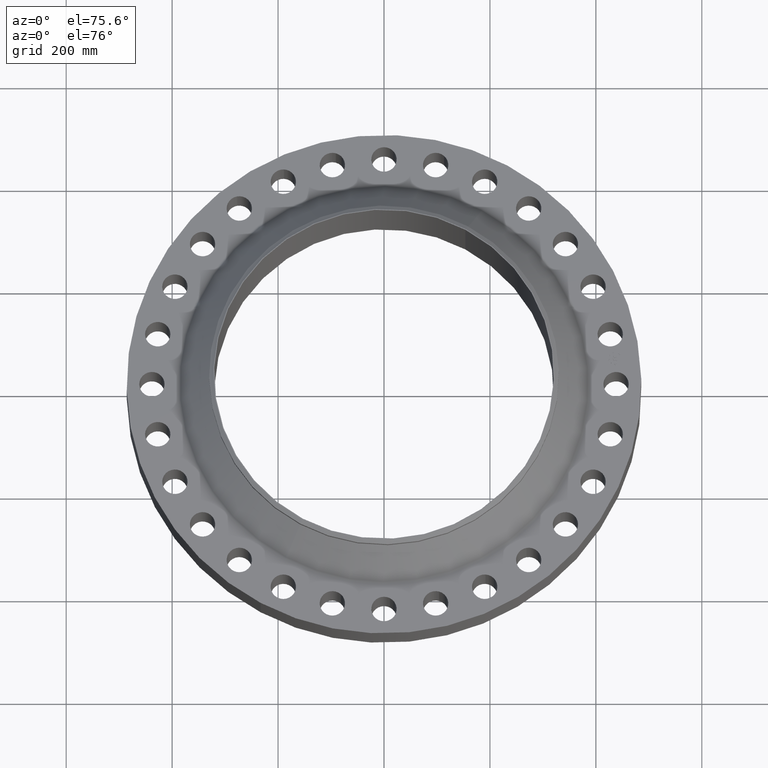
[diagram: clean part render]
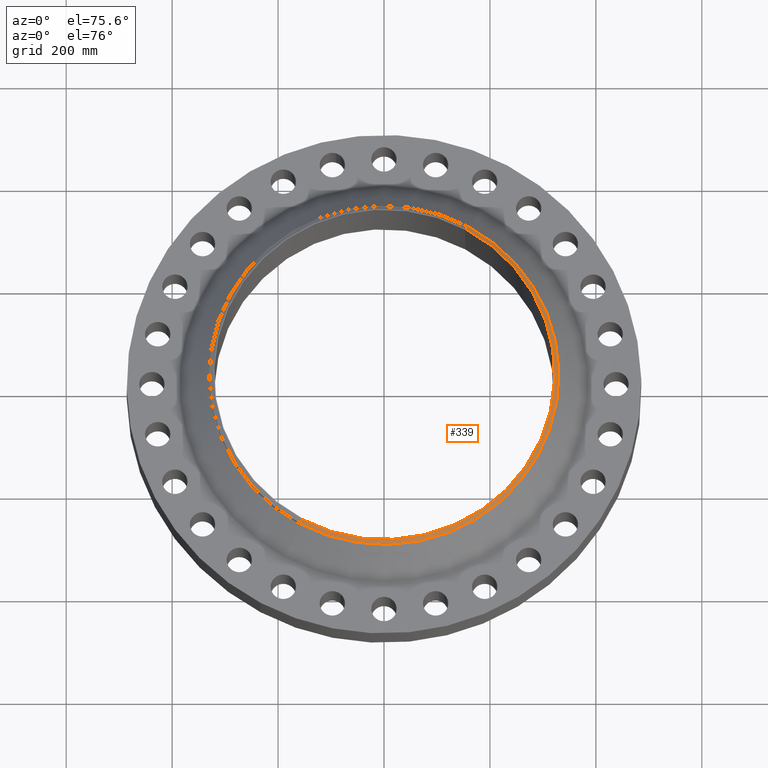
[diagram: same view with one face highlighted and labeled with its STEP entity id]
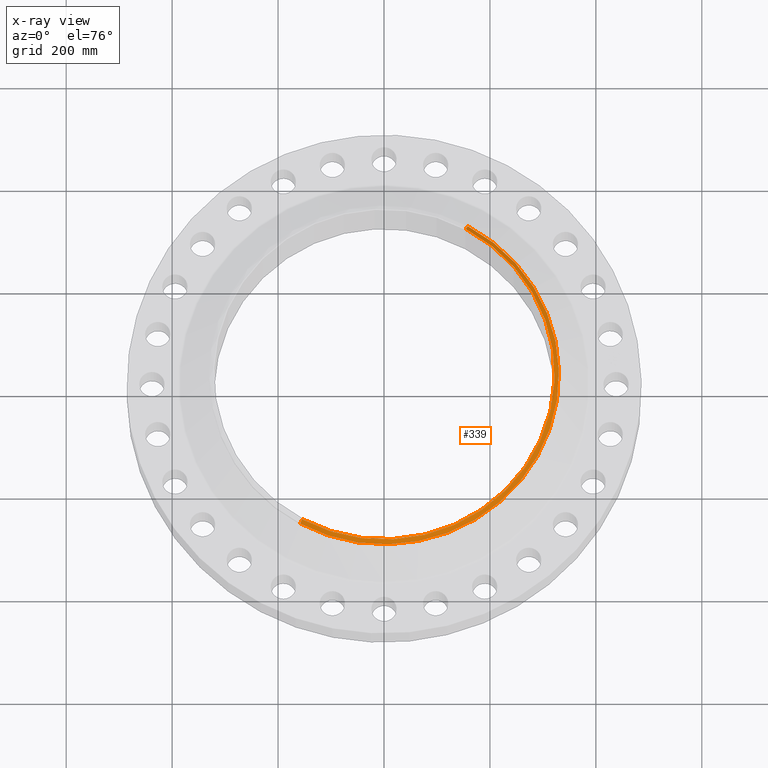
[diagram: x-ray of the same camera — body ghosted, the highlighted face saturated]
A machine part, auxiliary view. The second image highlights one B-rep face of the part: STEP entity #339.
The next image is the same camera in x-ray: the body ghosted, the highlighted face saturated — about 0% of this face is hidden behind the body in this view.
In plain terms, the highlighted conical surface has half-angle 52.5 deg.
Its self-contained STEP definition (entity closure, byte-faithful):
#275=CARTESIAN_POINT('Vertex',(-158.306312848,-289.777761937,141.483342033)) ;
#282=CARTESIAN_POINT('Vertex',(158.306312848,289.777761937,141.483342033)) ;
#285=CARTESIAN_POINT('Axis2P3D Location',(0.,0.,141.483342033)) ;
#309=CARTESIAN_POINT('Axis2P3D Location',(0.,0.,147.574000001)) ;
#314=CARTESIAN_POINT('Line Origine',(158.539105076,290.203885253,141.110754958)) ;
#318=CARTESIAN_POINT('Vertex',(154.500872635,282.811950352,147.574000001)) ;
#321=CARTESIAN_POINT('Axis2P3D Location',(0.,0.,147.574000001)) ;
#325=CARTESIAN_POINT('Vertex',(-154.500872635,-282.811950352,147.574000001)) ;
#328=CARTESIAN_POINT('Line Origine',(-158.539105076,-290.203885253,141.110754958)) ;
#286=DIRECTION('Axis2P3D Direction',(0.,0.,-1.)) ;
#310=DIRECTION('Axis2P3D Direction',(-0.,-0.,-1.)) ;
#311=DIRECTION('Axis2P3D XDirection',(0.479425538604,0.87758256189,0.)) ;
#315=DIRECTION('Vector Direction',(0.380353852473,0.696233056857,-0.608761429009)) ;
#322=DIRECTION('Axis2P3D Direction',(0.,-0.,-1.)) ;
#329=DIRECTION('Vector Direction',(-0.380353852473,-0.696233056857,-0.608761429009)) ;
#287=AXIS2_PLACEMENT_3D('Circle Axis2P3D',#285,#286,$) ;
#312=AXIS2_PLACEMENT_3D('Cone Axis2P3D',#309,#310,#311) ;
#323=AXIS2_PLACEMENT_3D('Circle Axis2P3D',#321,#322,$) ;
#334=ORIENTED_EDGE('',*,*,#320,.F.) ;
#335=ORIENTED_EDGE('',*,*,#327,.T.) ;
#336=ORIENTED_EDGE('',*,*,#332,.T.) ;
#337=ORIENTED_EDGE('',*,*,#289,.F.) ;
#316=VECTOR('Line Direction',#315,1.) ;
#330=VECTOR('Line Direction',#329,1.) ;
#339=ADVANCED_FACE('PartBody',(#338),#313,.T.) ;
#288=CIRCLE('generated circle',#287,330.200000001) ;
#324=CIRCLE('generated circle',#323,322.262500001) ;
#313=CONICAL_SURFACE('Cone',#312,322.262500001,0.916297857297) ;
#289=EDGE_CURVE('',#283,#276,#288,.T.) ;
#320=EDGE_CURVE('',#319,#283,#317,.T.) ;
#327=EDGE_CURVE('',#319,#326,#324,.T.) ;
#332=EDGE_CURVE('',#326,#276,#331,.T.) ;
#333=EDGE_LOOP('',(#334,#335,#336,#337)) ;
#338=FACE_OUTER_BOUND('',#333,.T.) ;
#317=LINE('Line',#314,#316) ;
#331=LINE('Line',#328,#330) ;
#276=VERTEX_POINT('',#275) ;
#283=VERTEX_POINT('',#282) ;
#319=VERTEX_POINT('',#318) ;
#326=VERTEX_POINT('',#325) ;